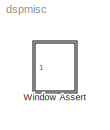
MODEL dspmisc
KIND library
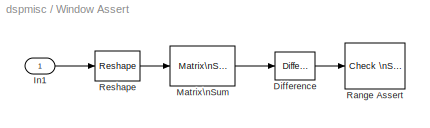
BLOCK [SubSystem] Window Assert
  EnableExecutionContextPropagation = on
  MaskCallbackString = ||
  MaskEnableString = on,on,on
  MaskIconFrame = on
  MaskIconOpaque = on
  MaskIconRotate = none
  MaskIconUnits = autoscale
  MaskPromptString = Window size:|Decimation:|Tolerance
  MaskStyleString = edit,edit,edit
  MaskTabNameString = ,,
  MaskToolTipString = on,on,on
  MaskTunableValueString = on,on,on
  MaskValueString = 512|16|10e-16
  MaskVarAliasString = ,,
  MaskVariables = winsize=@1;decimat=@2;tol=@3;
  MaskVisibilityString = on,on,on
  MinAlgLoopOccurrences = off
  Ports = [1]
  TreatAsAtomicUnit = off
BLOCK [Reference] Window Assert/Difference  REF=dspmathops/Difference
  Ports = [1, 1]
  SourceBlock = dspmathops/Difference
  SourceType = Difference
  dim = Columns
BLOCK [Inport] Window Assert/In1
  IconDisplay = Port number
  LatchInput = off
BLOCK [Reference] Window Assert/Matrix\nSum  REF=dspmtrx3/Matrix\nSum
  Dim = Rows
  Ports = [1, 1]
  SourceBlock = dspmtrx3/Matrix\nSum
  SourceType = Matrix Sum
  accumFracLength = 30
  accumMode = Same as output
  accumWordLength = 40
  additionalParams = off
  allowOverrides = on
  outputFracLength = 30
  outputMode = Same as input
  outputWordLength = 32
  overflowMode = off
  roundingMode = Floor
BLOCK [Reference] Window Assert/Range Assert  REF=simulink/Model\nVerification/Check \nStatic Range
  Description = -tol <= u <= tol
  Ports = [1]
  SourceBlock = simulink/Model\nVerification/Check \nStatic Range
  SourceType = Checks_SRange
  enabled = on
  export = off
  icon = graphic
  max = tol
  max_included = on
  min = -tol
  min_included = on
  stopWhenAssertionFail = on
BLOCK [Reference] Window Assert/Reshape  REF=simulink/Math\nOperations/Reshape
  OutputDimensionality = Customize
  OutputDimensions = [decimat, winsize/decimat]
  Ports = [1, 1]
  SourceBlock = simulink/Math\nOperations/Reshape
  SourceType = Reshape
LINE Window Assert/Difference:1 -> Window Assert/Range Assert:1
LINE Window Assert/In1:1 -> Window Assert/Reshape:1
LINE Window Assert/Matrix\nSum:1 -> Window Assert/Difference:1
LINE Window Assert/Reshape:1 -> Window Assert/Matrix\nSum:1
